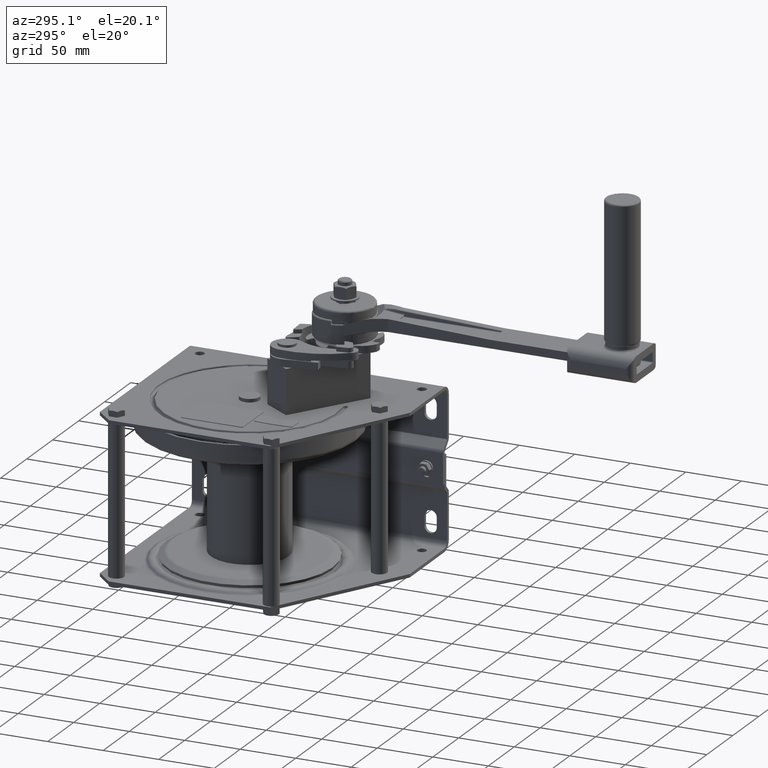
[diagram: clean part render]
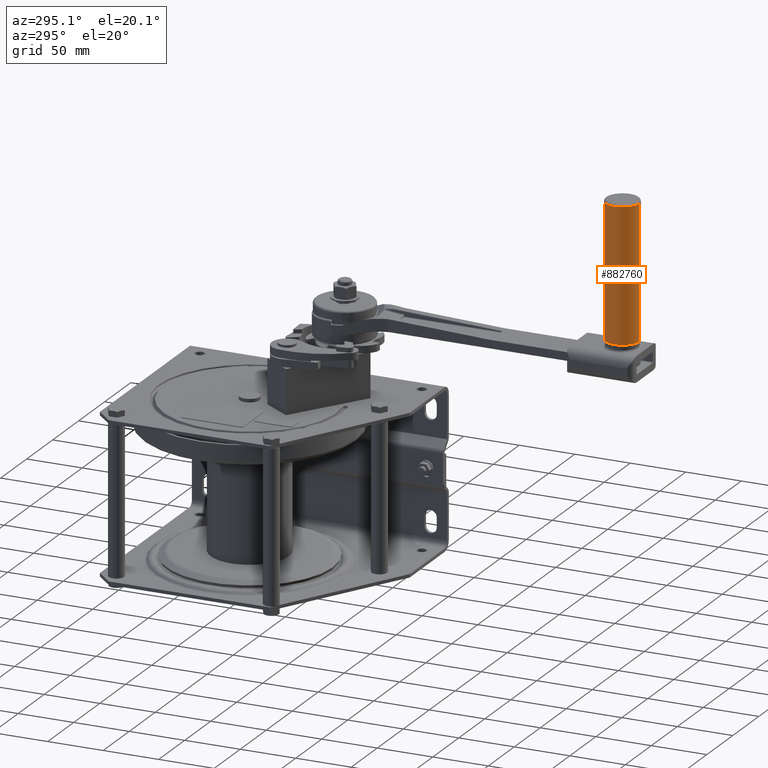
[diagram: same view with one face highlighted and labeled with its STEP entity id]
A machine part, auxiliary view. The second image highlights one B-rep face of the part: STEP entity #882760.
In plain terms, the highlighted cylindrical surface (edge-blend (fillet) strip) has radius 15 mm, axis along (0, -0, 1).
Its self-contained STEP definition (entity closure, byte-faithful):
#882080=CARTESIAN_POINT('',(-258.781087091884,56.631798561152,
-23.9999679487055));
#882090=VERTEX_POINT('',#882080);
#882120=CARTESIAN_POINT('',(-258.781087091884,56.631798561152,
-38.9999679487055));
#882130=DIRECTION('',(-1.,0.,-2.77555756156289E-17));
#882140=DIRECTION('',(-7.70371977754894E-34,-1.,2.77555756156289E-17));
#882150=AXIS2_PLACEMENT_3D('',#882120,#882130,#882140);
#882160=CIRCLE('',#882150,15.);
#882170=CARTESIAN_POINT('',(-258.781087091884,71.631798561152,
-38.9999679487055));
#882180=VERTEX_POINT('',#882170);
#882190=EDGE_CURVE('',#882090,#882180,#882160,.T.);
#882370=CARTESIAN_POINT('',(-318.781087091884,56.631798561152,
-38.9999679487055));
#882380=DIRECTION('',(-1.,0.,-2.77555756156289E-17));
#882390=DIRECTION('',(7.70371977754894E-34,1.,-2.77555756156289E-17));
#882400=AXIS2_PLACEMENT_3D('',#882370,#882380,#882390);
#882410=CYLINDRICAL_SURFACE('',#882400,15.);
#882420=CARTESIAN_POINT('',(-318.781087091884,71.631798561152,
-38.9999679487055));
#882430=DIRECTION('',(-1.,0.,-2.77555756156289E-17));
#882440=VECTOR('',#882430,1.);
#882450=LINE('',#882420,#882440);
#882460=CARTESIAN_POINT('',(-378.781087091884,71.631798561152,
-38.9999679487055));
#882470=VERTEX_POINT('',#882460);
#882480=EDGE_CURVE('',#882180,#882470,#882450,.T.);
#882490=ORIENTED_EDGE('',*,*,#882480,.T.);
#882500=ORIENTED_EDGE('',*,*,#882190,.T.);
#882510=CARTESIAN_POINT('',(-258.781087091884,41.631798561152,
-38.9999679487055));
#882520=VERTEX_POINT('',#882510);
#882530=EDGE_CURVE('',#882520,#882090,#882160,.T.);
#882540=ORIENTED_EDGE('',*,*,#882530,.T.);
#882550=CARTESIAN_POINT('',(-318.781087091884,41.631798561152,
-38.9999679487055));
#882560=DIRECTION('',(-1.,0.,-2.77555756156289E-17));
#882570=VECTOR('',#882560,1.);
#882580=LINE('',#882550,#882570);
#882590=CARTESIAN_POINT('',(-378.781087091884,41.631798561152,
-38.9999679487055));
#882600=VERTEX_POINT('',#882590);
#882610=EDGE_CURVE('',#882520,#882600,#882580,.T.);
#882620=ORIENTED_EDGE('',*,*,#882610,.F.);
#882630=CARTESIAN_POINT('',(-378.781087091884,56.631798561152,
-38.9999679487055));
#882640=DIRECTION('',(-1.,0.,-2.77555756156289E-17));
#882650=DIRECTION('',(-7.70371977754894E-34,-1.,2.77555756156289E-17));
#882660=AXIS2_PLACEMENT_3D('',#882630,#882640,#882650);
#882670=CIRCLE('',#882660,15.);
#882680=CARTESIAN_POINT('',(-378.781087091884,56.631798561152,
-23.9999679487055));
#882690=VERTEX_POINT('',#882680);
#882700=EDGE_CURVE('',#882600,#882690,#882670,.T.);
#882710=ORIENTED_EDGE('',*,*,#882700,.F.);
#882720=EDGE_CURVE('',#882690,#882470,#882670,.T.);
#882730=ORIENTED_EDGE('',*,*,#882720,.F.);
#882740=EDGE_LOOP('',(#882730,#882710,#882620,#882540,#882500,#882490));
#882750=FACE_OUTER_BOUND('',#882740,.T.);
#882760=ADVANCED_FACE('',(#882750),#882410,.T.);